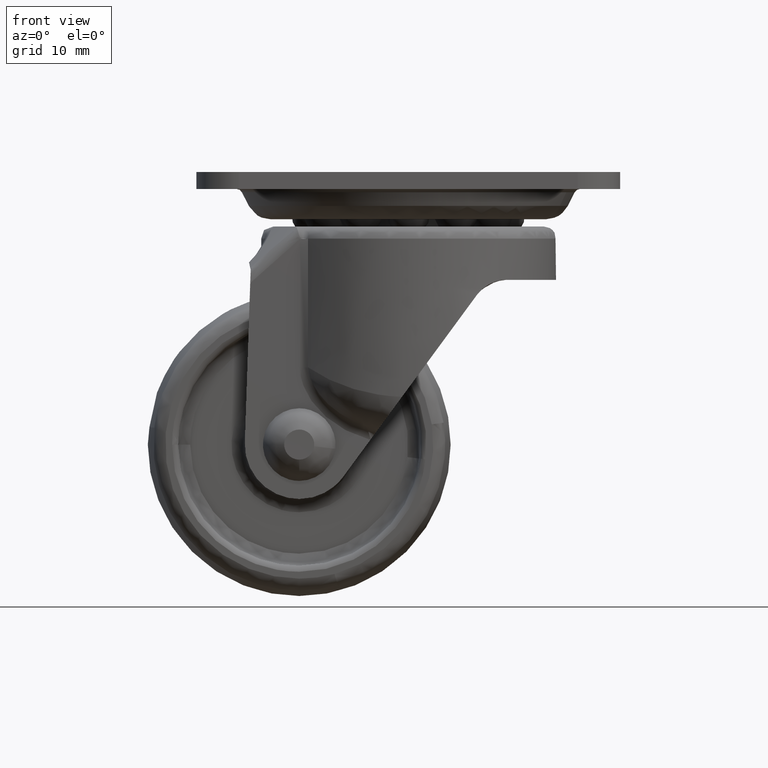
[diagram: clean part render]
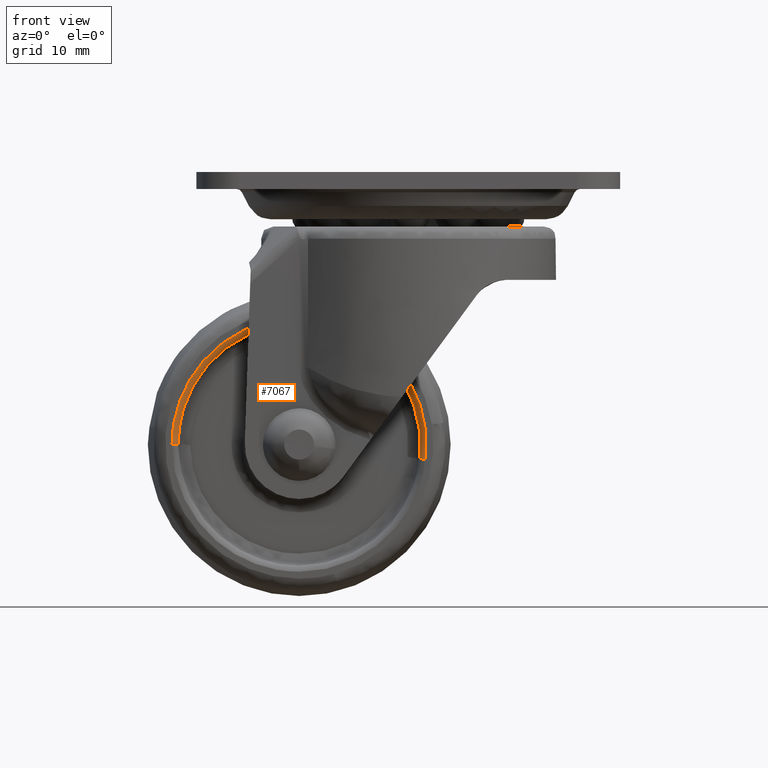
[diagram: same view with one face highlighted and labeled with its STEP entity id]
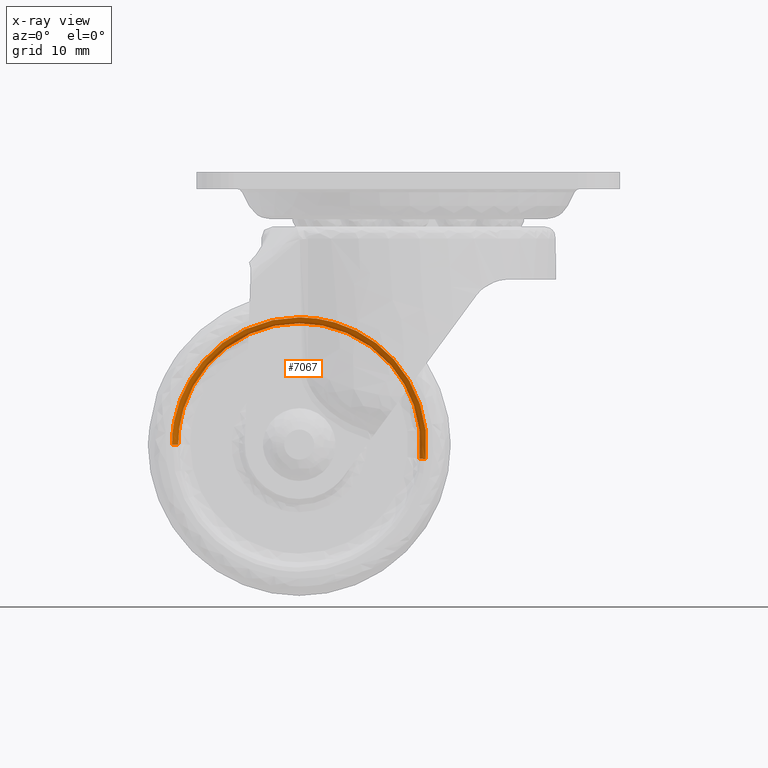
[diagram: x-ray of the same camera — body ghosted, the highlighted face saturated]
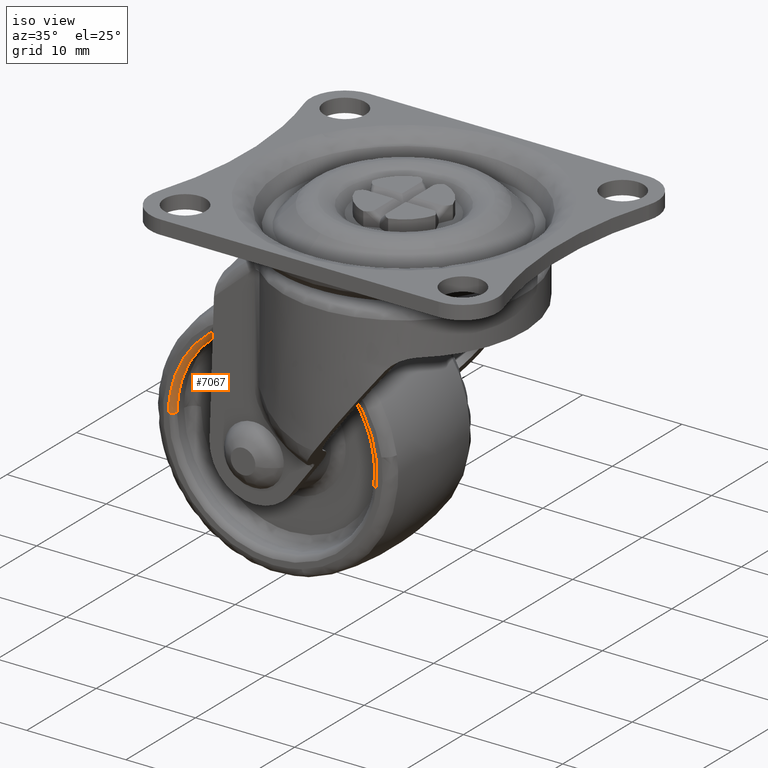
[diagram: same view with one face highlighted and labeled with its STEP entity id]
A machine part, front view. The second image highlights one B-rep face of the part: STEP entity #7067.
The next image is the same camera in x-ray: the body ghosted, the highlighted face saturated — about 0% of this face is hidden behind the body in this view.
A second angle (iso view) of the same face is appended — the face is thin or edge-on in the first view.
In plain terms, the highlighted face is a freeform B-spline surface patch.
Its self-contained STEP definition (entity closure, byte-faithful):
#5832=CARTESIAN_POINT('',(-6.048954118146156,-5.500000000061199,7.963049295122636));
#5833=VERTEX_POINT('',#5832);
#5834=CARTESIAN_POINT('',(-10.0,-5.500000000300652,-3.817733E-019));
#5835=VERTEX_POINT('',#5834);
#5836=CARTESIAN_POINT('',(-6.048954118146156,-5.500000000061199,7.963049295122636));
#5837=CARTESIAN_POINT('',(-9.999999999999975,-5.500000000151438,4.961724755708068));
#5838=CARTESIAN_POINT('',(-10.0,-5.500000000300652,-3.817733E-019));
#5846=(BOUNDED_CURVE()B_SPLINE_CURVE(2,(#5836,#5837,#5838),.UNSPECIFIED.,.F.,.U.)B_SPLINE_CURVE_WITH_KNOTS((3,3),(0.604483325125585,0.749999999999999),.UNSPECIFIED.)CURVE()GEOMETRIC_REPRESENTATION_ITEM()RATIONAL_B_SPLINE_CURVE((0.857498628958362,0.829516610820007,0.999999999999998))REPRESENTATION_ITEM(''));
#5847=EDGE_CURVE('',#5833,#5835,#5846,.T.);
#5864=CARTESIAN_POINT('',(9.933116387849880,-5.500000000291408,-1.154642293278792));
#5865=VERTEX_POINT('',#5864);
#5879=CARTESIAN_POINT('',(7.604060575571104,-5.499999999999826,6.494479406622459));
#5880=VERTEX_POINT('',#5879);
#5881=CARTESIAN_POINT('',(9.933116387849880,-5.500000000291409,-1.154642293278793));
#5882=CARTESIAN_POINT('',(10.0,-5.499999999999921,-0.579258290986904));
#5883=CARTESIAN_POINT('',(10.0,-5.499999999999920,-8.061993E-016));
#5884=CARTESIAN_POINT('',(9.999999999999998,-5.499999999999919,3.689193966779907));
#5885=CARTESIAN_POINT('',(7.604060575571104,-5.499999999999826,6.494479406622459));
#5893=(BOUNDED_CURVE()B_SPLINE_CURVE(2,(#5881,#5882,#5883,#5884,#5885),.UNSPECIFIED.,.F.,.U.)B_SPLINE_CURVE_WITH_KNOTS((3,2,3),(0.229999999999726,0.250000000000000,0.363143139951707),.UNSPECIFIED.)CURVE()GEOMETRIC_REPRESENTATION_ITEM()RATIONAL_B_SPLINE_CURVE((0.956886118190120,0.976568542494602,1.0,0.867444566211535,0.854871036394970))REPRESENTATION_ITEM(''));
#5894=EDGE_CURVE('',#5865,#5880,#5893,.T.);
#5987=CARTESIAN_POINT('',(0.0,-5.499999999999920,10.0));
#5988=VERTEX_POINT('',#5987);
#5989=CARTESIAN_POINT('',(0.0,-5.499999999999920,10.0));
#5990=CARTESIAN_POINT('',(-3.367442809272216,-5.499999999999920,9.999999999999998));
#5991=CARTESIAN_POINT('',(-6.048954118146156,-5.500000000061199,7.963049295122636));
#5999=(BOUNDED_CURVE()B_SPLINE_CURVE(2,(#5989,#5990,#5991),.UNSPECIFIED.,.F.,.U.)B_SPLINE_CURVE_WITH_KNOTS((3,3),(0.500000000000000,0.604483325125585),.UNSPECIFIED.)CURVE()GEOMETRIC_REPRESENTATION_ITEM()RATIONAL_B_SPLINE_CURVE((1.0,0.877590170366540,0.857498628958362))REPRESENTATION_ITEM(''));
#6000=EDGE_CURVE('',#5988,#5833,#5999,.T.);
#6032=CARTESIAN_POINT('',(7.604060575571104,-5.499999999999826,6.494479406622459));
#6033=CARTESIAN_POINT('',(4.610064002697870,-5.499999999999919,10.0));
#6034=CARTESIAN_POINT('',(0.0,-5.499999999999920,10.0));
#6042=(BOUNDED_CURVE()B_SPLINE_CURVE(2,(#6032,#6033,#6034),.UNSPECIFIED.,.F.,.U.)B_SPLINE_CURVE_WITH_KNOTS((3,3),(0.363143139951707,0.500000000000000),.UNSPECIFIED.)CURVE()GEOMETRIC_REPRESENTATION_ITEM()RATIONAL_B_SPLINE_CURVE((0.854871036394970,0.839662214975013,1.0))REPRESENTATION_ITEM(''));
#6043=EDGE_CURVE('',#5880,#5988,#6042,.T.);
#6972=CARTESIAN_POINT('',(10.464216033708929,-5.998796152660998,-1.216377020871362));
#6973=CARTESIAN_POINT('',(10.534675612330684,-5.998796152660996,-0.610229223197585));
#6974=CARTESIAN_POINT('',(10.534675612330686,-5.998796152660997,-1.935125E-015));
#6975=CARTESIAN_POINT('',(10.534675612330684,-5.998796152660996,10.534675612330680));
#6976=CARTESIAN_POINT('',(2.580166E-015,-5.998796152660997,10.534675612330686));
#6977=CARTESIAN_POINT('',(-10.534675612330680,-5.998796152660996,10.534675612330684));
#6978=CARTESIAN_POINT('',(-10.534675612330686,-5.998796152660997,3.225208E-015));
#6979=CARTESIAN_POINT('',(9.894506806748922,-6.038668221216720,-1.150153119336818));
#6980=CARTESIAN_POINT('',(9.961130314714337,-6.038668221216721,-0.577006168752189));
#6981=CARTESIAN_POINT('',(9.961130314714335,-6.038668221216719,-1.829770E-015));
#6982=CARTESIAN_POINT('',(9.961130314714335,-6.038668221216720,9.961130314714330));
#6983=CARTESIAN_POINT('',(2.439693E-015,-6.038668221216719,9.961130314714335));
#6984=CARTESIAN_POINT('',(-9.961130314714330,-6.038668221216720,9.961130314714335));
#6985=CARTESIAN_POINT('',(-9.961130314714335,-6.038668221216719,3.049616E-015));
#6986=CARTESIAN_POINT('',(9.934325227941896,-5.465137873223296,-1.154781675588953));
#6987=CARTESIAN_POINT('',(10.001216848603910,-5.465137873223296,-0.579328212195794));
#6988=CARTESIAN_POINT('',(10.001216848603912,-5.465137873223293,-1.837133E-015));
#6989=CARTESIAN_POINT('',(10.001216848603914,-5.465137873223296,10.001216848603914));
#6990=CARTESIAN_POINT('',(2.449511E-015,-5.465137873223293,10.001216848603912));
#6991=CARTESIAN_POINT('',(-10.001216848603910,-5.465137873223296,10.001216848603914));
#6992=CARTESIAN_POINT('',(-10.001216848603912,-5.465137873223293,3.061888E-015));
#7000=(BOUNDED_SURFACE()B_SPLINE_SURFACE(2,2,((#6972,#6979,#6986),(#6973,#6980,#6987),(#6974,#6981,#6988),(#6975,#6982,#6989),(#6976,#6983,#6990),(#6977,#6984,#6991),(#6978,#6985,#6992)),.UNSPECIFIED.,.F.,.F.,.U.)B_SPLINE_SURFACE_WITH_KNOTS((3,2,2,3),(3,3),(0.0,1.396352432758385,18.850774488072219,36.305196543386053),(0.0,0.911185597920371),.UNSPECIFIED.)GEOMETRIC_REPRESENTATION_ITEM()RATIONAL_B_SPLINE_SURFACE(((0.870831904997782,0.569876247281656,0.866008000876766),(0.888744244638877,0.581598161506569,0.883821116536154),(0.910068454623733,0.595552818763237,0.905027202754720),(0.643515575608403,0.421119436702248,0.639950872226155),(0.910068454623733,0.595552818763237,0.905027202754720),(0.643515575608403,0.421119436702248,0.639950872226155),(0.910068454623733,0.595552818763237,0.905027202754720)))REPRESENTATION_ITEM('')SURFACE());
#7001=CARTESIAN_POINT('',(10.429772206783790,-5.999999999999920,-1.212374407906364));
#7002=VERTEX_POINT('',#7001);
#7003=CARTESIAN_POINT('',(0.0,-5.999999999999920,10.500000000000000));
#7004=VERTEX_POINT('',#7003);
#7005=CARTESIAN_POINT('',(10.429772206783788,-5.999999999999921,-1.212374407906364));
#7006=CARTESIAN_POINT('',(10.500000000000004,-5.999999999999920,-0.608221205553133));
#7007=CARTESIAN_POINT('',(10.500000000000000,-5.999999999999920,-8.061993E-016));
#7008=CARTESIAN_POINT('',(10.500000000000000,-5.999999999999919,10.500000000000000));
#7009=CARTESIAN_POINT('',(0.0,-5.999999999999920,10.500000000000000));
#7017=(BOUNDED_CURVE()B_SPLINE_CURVE(2,(#7005,#7006,#7007,#7008,#7009),.UNSPECIFIED.,.F.,.U.)B_SPLINE_CURVE_WITH_KNOTS((3,2,3),(0.229999999999184,0.250000000000000,0.500000000000000),.UNSPECIFIED.)CURVE()GEOMETRIC_REPRESENTATION_ITEM()RATIONAL_B_SPLINE_CURVE((0.956886118189053,0.976568542493967,1.0,0.707106781186547,1.0))REPRESENTATION_ITEM(''));
#7018=EDGE_CURVE('',#7002,#7004,#7017,.T.);
#7019=ORIENTED_EDGE('',*,*,#7018,.T.);
#7020=CARTESIAN_POINT('',(-10.499999999832330,-5.999999999999920,-3.654997E-019));
#7021=VERTEX_POINT('',#7020);
#7022=CARTESIAN_POINT('',(0.0,-5.999999999999920,10.500000000000000));
#7023=CARTESIAN_POINT('',(-10.499999999999948,-5.999999999999920,10.500000000000000));
#7024=CARTESIAN_POINT('',(-10.499999999832331,-5.999999999999921,-3.654997E-019));
#7032=(BOUNDED_CURVE()B_SPLINE_CURVE(2,(#7022,#7023,#7024),.UNSPECIFIED.,.F.,.U.)B_SPLINE_CURVE_WITH_KNOTS((3,3),(0.500000000000000,0.749999999999999),.UNSPECIFIED.)CURVE()GEOMETRIC_REPRESENTATION_ITEM()RATIONAL_B_SPLINE_CURVE((1.0,0.707106781186548,0.999999999999998))REPRESENTATION_ITEM(''));
#7033=EDGE_CURVE('',#7004,#7021,#7032,.T.);
#7034=ORIENTED_EDGE('',*,*,#7033,.T.);
#7035=CARTESIAN_POINT('',(-10.499999999832333,-5.999999999999920,-3.654997E-019));
#7036=CARTESIAN_POINT('',(-10.000000000601458,-5.999999999664588,8.848412E-016));
#7037=CARTESIAN_POINT('',(-10.0,-5.500000000300652,-3.817733E-019));
#7045=(BOUNDED_CURVE()B_SPLINE_CURVE(2,(#7035,#7036,#7037),.UNSPECIFIED.,.F.,.U.)B_SPLINE_CURVE_WITH_KNOTS((3,3),(-1.726807298828534,-0.285995335267382),.UNSPECIFIED.)CURVE()GEOMETRIC_REPRESENTATION_ITEM()RATIONAL_B_SPLINE_CURVE((0.882788775971615,0.622603438081551,0.878205638620769))REPRESENTATION_ITEM(''));
#7046=EDGE_CURVE('',#7021,#5835,#7045,.T.);
#7047=ORIENTED_EDGE('',*,*,#7046,.T.);
#7048=ORIENTED_EDGE('',*,*,#5847,.F.);
#7049=ORIENTED_EDGE('',*,*,#6000,.F.);
#7050=ORIENTED_EDGE('',*,*,#6043,.F.);
#7051=ORIENTED_EDGE('',*,*,#5894,.F.);
#7052=CARTESIAN_POINT('',(10.429772206783788,-5.999999999999920,-1.212374407906364));
#7053=CARTESIAN_POINT('',(9.933116388429889,-5.999999999080480,-1.154642293338053));
#7054=CARTESIAN_POINT('',(9.933116387849882,-5.500000000291408,-1.154642293278792));
#7062=(BOUNDED_CURVE()B_SPLINE_CURVE(2,(#7052,#7053,#7054),.UNSPECIFIED.,.F.,.U.)B_SPLINE_CURVE_WITH_KNOTS((3,3),(-1.726807297635241,-0.285995335229808),.UNSPECIFIED.)CURVE()GEOMETRIC_REPRESENTATION_ITEM()RATIONAL_B_SPLINE_CURVE((0.844728324609369,0.595760587234087,0.840342784525734))REPRESENTATION_ITEM(''));
#7063=EDGE_CURVE('',#7002,#5865,#7062,.T.);
#7064=ORIENTED_EDGE('',*,*,#7063,.F.);
#7065=EDGE_LOOP('',(#7019,#7034,#7047,#7048,#7049,#7050,#7051,#7064));
#7066=FACE_OUTER_BOUND('',#7065,.T.);
#7067=ADVANCED_FACE('',(#7066),#7000,.T.);